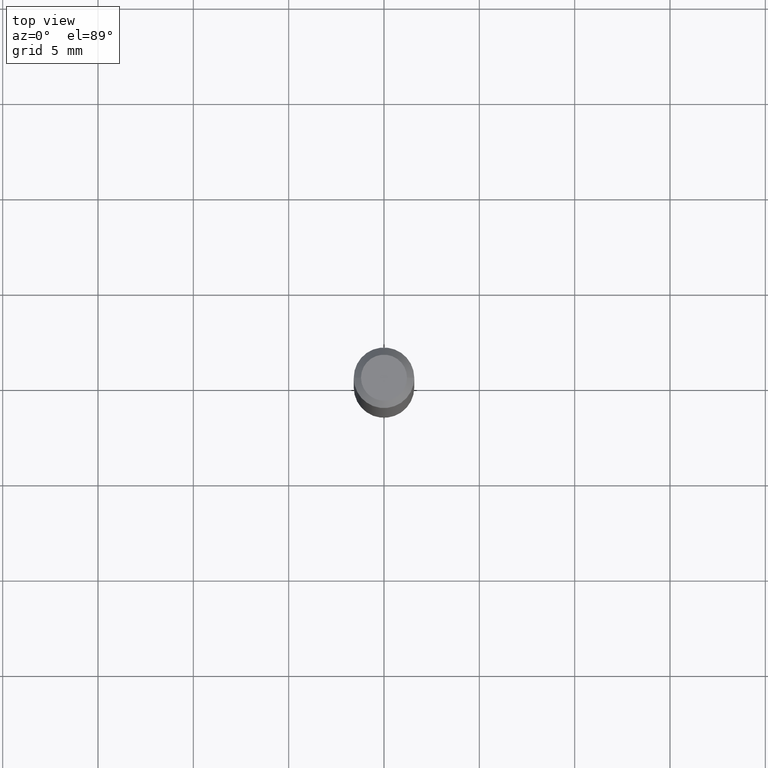
[diagram: clean part render]
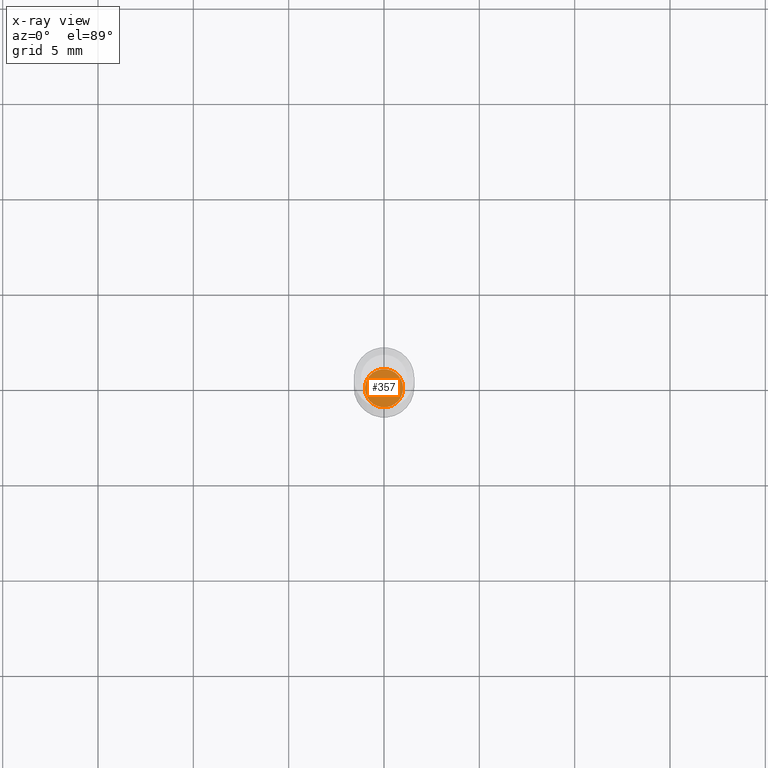
[diagram: x-ray — body ghosted, one internal face saturated and labeled with its STEP entity id]
A machine part, top view, then the same camera in x-ray: the body is ghosted and one INTERNAL B-rep face — a face not visible from any outside direction — is saturated and labeled: STEP entity #357.
In plain terms, the highlighted planar face has unit normal (-0, 0, 1).
Its self-contained STEP definition (entity closure, byte-faithful):
#7 = FACE_OUTER_BOUND ( 'NONE', #155, .T. ) ;
#13 = EDGE_CURVE ( 'NONE', #257, #452, #52, .T. ) ;
#20 = DIRECTION ( 'NONE',  ( -2.445468806185136597E-29, 3.491481338843145583E-15, 1.000000000000000000 ) ) ;
#34 = AXIS2_PLACEMENT_3D ( 'NONE', #344, #461, #96 ) ;
#52 = CIRCLE ( 'NONE', #406, 0.03950000000000001427 ) ;
#82 = ORIENTED_EDGE ( 'NONE', *, *, #280, .F. ) ;
#96 = DIRECTION ( 'NONE',  ( 1.000000000000000000, -6.982962677686269077E-15, 0.000000000000000000 ) ) ;
#121 = PLANE ( 'NONE',  #332 ) ;
#155 = EDGE_LOOP ( 'NONE', ( #202, #82 ) ) ;
#202 = ORIENTED_EDGE ( 'NONE', *, *, #13, .F. ) ;
#214 = DIRECTION ( 'NONE',  ( -2.438088387897960049E-29, 3.491481338843145188E-15, 1.000000000000000000 ) ) ;
#257 = VERTEX_POINT ( 'NONE', #265 ) ;
#265 = CARTESIAN_POINT ( 'NONE',  ( 0.03950000000000001427, -4.675093512710971939E-15, -1.260000000000000231 ) ) ;
#280 = EDGE_CURVE ( 'NONE', #452, #257, #378, .T. ) ;
#294 = CARTESIAN_POINT ( 'NONE',  ( 3.081290695793272291E-29, -4.399266486942364120E-15, -1.260000000000000231 ) ) ;
#307 = CARTESIAN_POINT ( 'NONE',  ( -0.03950000000000001427, -4.115952879143013491E-15, -1.260000000000000231 ) ) ;
#312 = DIRECTION ( 'NONE',  ( 1.000000000000000000, -6.982962677686269077E-15, 0.000000000000000000 ) ) ;
#332 = AXIS2_PLACEMENT_3D ( 'NONE', #294, #214, #333 ) ;
#333 = DIRECTION ( 'NONE',  ( 1.000000000000000000, -6.982962677686265922E-15, 4.876176775795935793E-29 ) ) ;
#344 = CARTESIAN_POINT ( 'NONE',  ( 3.081290695793272291E-29, -4.399266486942364120E-15, -1.260000000000000231 ) ) ;
#357 = ADVANCED_FACE ( 'NONE', ( #7 ), #121, .F. ) ;
#378 = CIRCLE ( 'NONE', #34, 0.03950000000000001427 ) ;
#384 = CARTESIAN_POINT ( 'NONE',  ( 3.081290695793272291E-29, -4.399266486942364120E-15, -1.260000000000000231 ) ) ;
#406 = AXIS2_PLACEMENT_3D ( 'NONE', #384, #20, #312 ) ;
#452 = VERTEX_POINT ( 'NONE', #307 ) ;
#461 = DIRECTION ( 'NONE',  ( -2.445468806185136597E-29, 3.491481338843145583E-15, 1.000000000000000000 ) ) ;